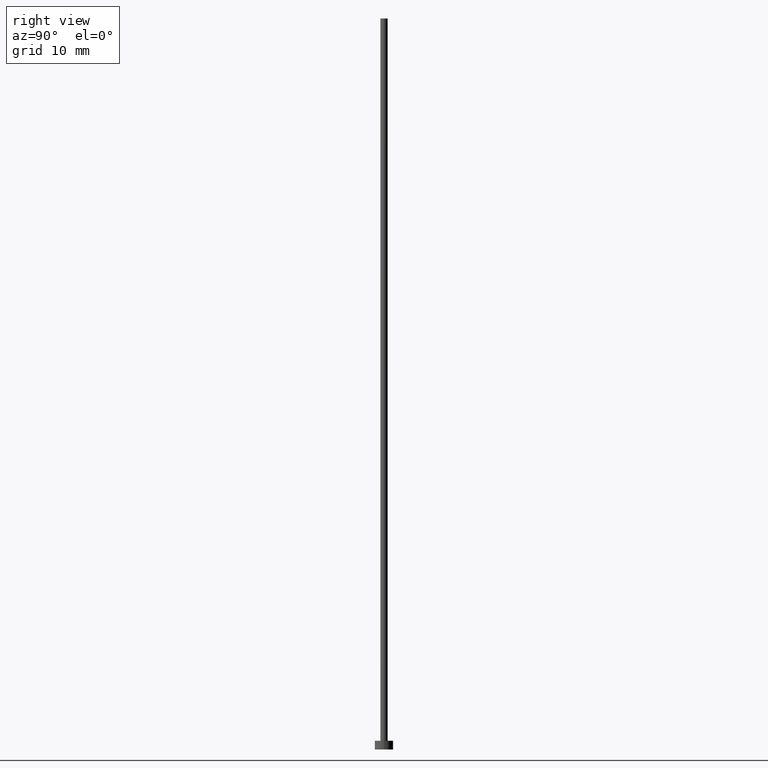
[diagram: clean part render]
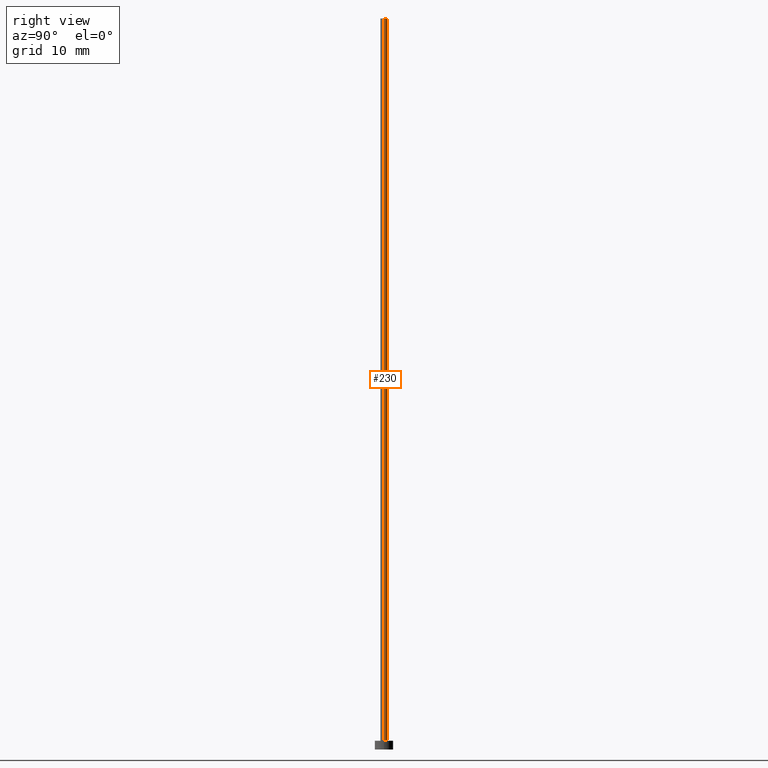
[diagram: same view with one face highlighted and labeled with its STEP entity id]
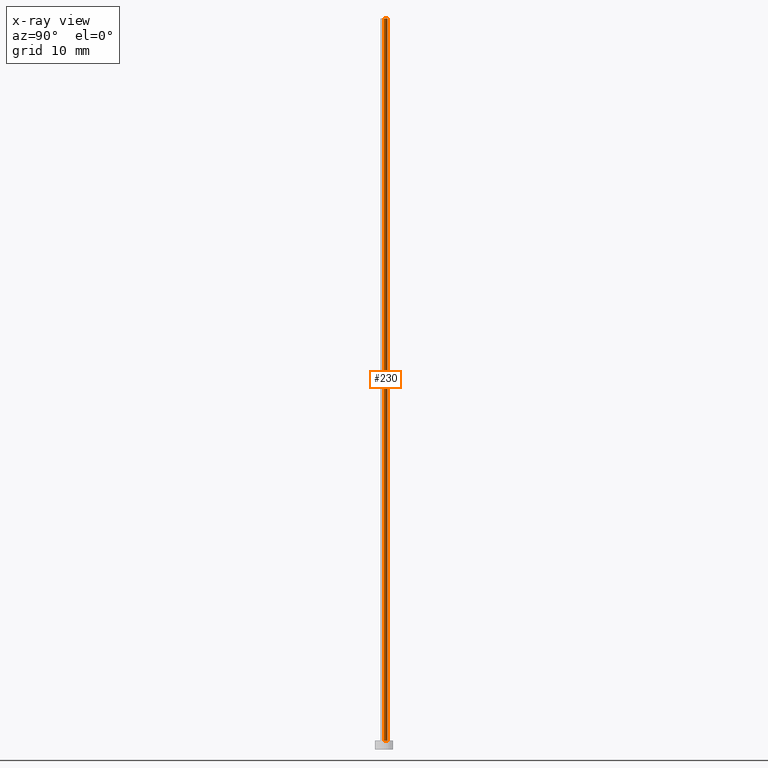
[diagram: x-ray of the same camera — body ghosted, the highlighted face saturated]
A machine part, right view. The second image highlights one B-rep face of the part: STEP entity #230.
The next image is the same camera in x-ray: the body ghosted, the highlighted face saturated — about 0% of this face is hidden behind the body in this view.
In plain terms, the highlighted cylindrical surface (edge-blend (fillet) strip) has radius 0.5 mm, axis along (-0, -0, -1).
Its self-contained STEP definition (entity closure, byte-faithful):
#6 = EDGE_CURVE ( 'NONE', #139, #159, #33, .T. ) ;
#8 = VECTOR ( 'NONE', #64, 1000.000000000000000 ) ;
#32 = CARTESIAN_POINT ( 'NONE',  ( 0.000000000000000000, 0.000000000000000000, 1.199999999999999956 ) ) ;
#33 = CIRCLE ( 'NONE', #78, 0.5000000000000000000 ) ;
#39 = CARTESIAN_POINT ( 'NONE',  ( 0.5000000000000000000, 6.123233995736766036E-17, 100.0000000000000000 ) ) ;
#54 = VERTEX_POINT ( 'NONE', #97 ) ;
#62 = CIRCLE ( 'NONE', #189, 0.5000000000000000000 ) ;
#64 = DIRECTION ( 'NONE',  ( -0.000000000000000000, -0.000000000000000000, -1.000000000000000000 ) ) ;
#78 = AXIS2_PLACEMENT_3D ( 'NONE', #32, #79, #202 ) ;
#79 = DIRECTION ( 'NONE',  ( 0.000000000000000000, 0.000000000000000000, 1.000000000000000000 ) ) ;
#84 = DIRECTION ( 'NONE',  ( -0.000000000000000000, -0.000000000000000000, -1.000000000000000000 ) ) ;
#95 = VERTEX_POINT ( 'NONE', #178 ) ;
#97 = CARTESIAN_POINT ( 'NONE',  ( 0.5000000000000000000, 6.123233995736766036E-17, 100.0000000000000000 ) ) ;
#101 = AXIS2_PLACEMENT_3D ( 'NONE', #142, #84, #106 ) ;
#102 = DIRECTION ( 'NONE',  ( 0.000000000000000000, 0.000000000000000000, 1.000000000000000000 ) ) ;
#106 = DIRECTION ( 'NONE',  ( -1.000000000000000000, 0.000000000000000000, 0.000000000000000000 ) ) ;
#110 = EDGE_CURVE ( 'NONE', #54, #95, #62, .T. ) ;
#118 = EDGE_CURVE ( 'NONE', #95, #159, #205, .T. ) ;
#123 = CARTESIAN_POINT ( 'NONE',  ( 0.000000000000000000, 0.000000000000000000, 100.0000000000000000 ) ) ;
#125 = CARTESIAN_POINT ( 'NONE',  ( 0.5000000000000000000, 6.123233995736766036E-17, 1.199999999999999956 ) ) ;
#136 = EDGE_CURVE ( 'NONE', #54, #139, #242, .T. ) ;
#139 = VERTEX_POINT ( 'NONE', #125 ) ;
#142 = CARTESIAN_POINT ( 'NONE',  ( 0.000000000000000000, 0.000000000000000000, 100.0000000000000000 ) ) ;
#144 = CARTESIAN_POINT ( 'NONE',  ( -0.5000000000000000000, 0.000000000000000000, 100.0000000000000000 ) ) ;
#150 = VECTOR ( 'NONE', #181, 1000.000000000000000 ) ;
#159 = VERTEX_POINT ( 'NONE', #187 ) ;
#178 = CARTESIAN_POINT ( 'NONE',  ( -0.5000000000000000000, 0.000000000000000000, 100.0000000000000000 ) ) ;
#181 = DIRECTION ( 'NONE',  ( -0.000000000000000000, -0.000000000000000000, -1.000000000000000000 ) ) ;
#184 = FACE_OUTER_BOUND ( 'NONE', #241, .T. ) ;
#187 = CARTESIAN_POINT ( 'NONE',  ( -0.5000000000000000000, 0.000000000000000000, 1.199999999999999956 ) ) ;
#189 = AXIS2_PLACEMENT_3D ( 'NONE', #123, #102, #220 ) ;
#195 = ORIENTED_EDGE ( 'NONE', *, *, #6, .T. ) ;
#202 = DIRECTION ( 'NONE',  ( 1.000000000000000000, 0.000000000000000000, 0.000000000000000000 ) ) ;
#205 = LINE ( 'NONE', #144, #150 ) ;
#216 = ORIENTED_EDGE ( 'NONE', *, *, #110, .F. ) ;
#220 = DIRECTION ( 'NONE',  ( 1.000000000000000000, 0.000000000000000000, 0.000000000000000000 ) ) ;
#224 = CYLINDRICAL_SURFACE ( 'NONE', #101, 0.5000000000000000000 ) ;
#230 = ADVANCED_FACE ( 'NONE', ( #184 ), #224, .T. ) ;
#241 = EDGE_LOOP ( 'NONE', ( #216, #254, #195, #250 ) ) ;
#242 = LINE ( 'NONE', #39, #8 ) ;
#250 = ORIENTED_EDGE ( 'NONE', *, *, #118, .F. ) ;
#254 = ORIENTED_EDGE ( 'NONE', *, *, #136, .T. ) ;